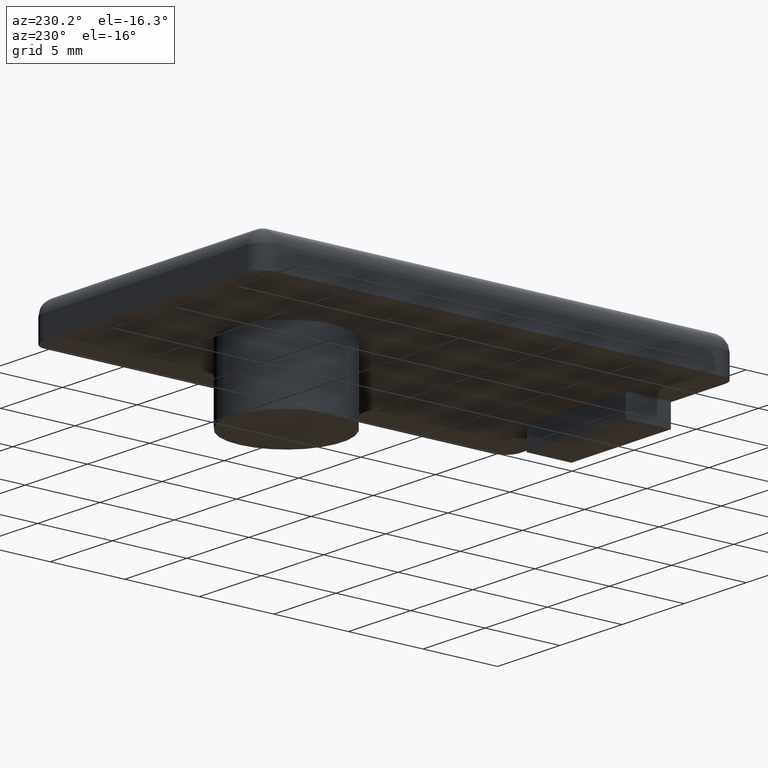
[diagram: clean part render]
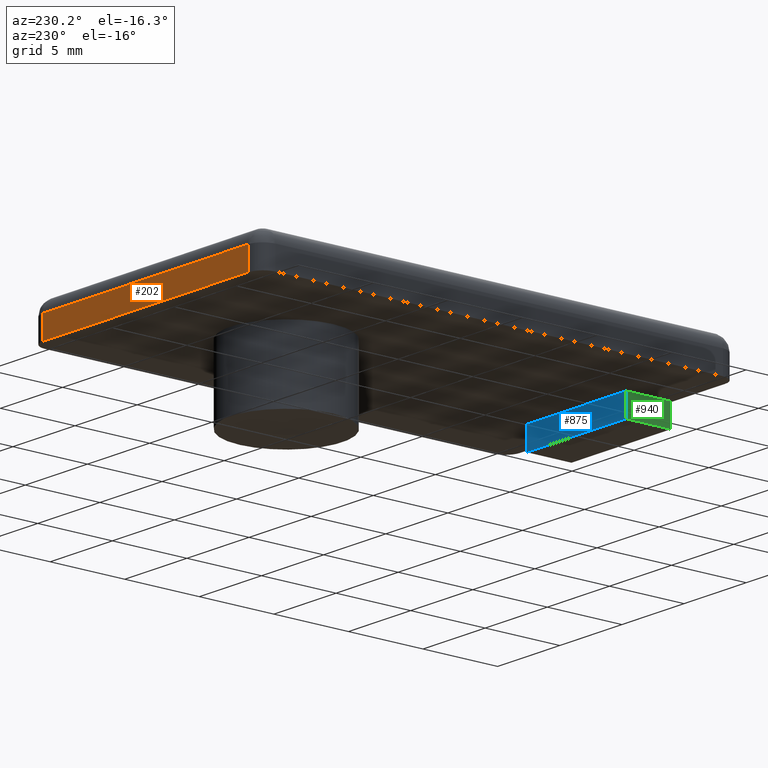
[diagram: same view with three faces highlighted in distinct colors, each labeled with its STEP entity id]
A machine part, auxiliary view with three faces highlighted in distinct colors.
Their STEP definitions:

[orange] entity #202 — the highlighted planar face has unit normal (0, 1, 0).
#34=CARTESIAN_POINT('',(-8.249999999966803,9.449999999962074,0.0));
#35=VERTEX_POINT('',#34);
#43=CARTESIAN_POINT('',(8.249999999967258,9.449999999962074,0.0));
#44=VERTEX_POINT('',#43);
#45=CARTESIAN_POINT('',(8.249999999967258,9.449999999962074,0.0));
#46=DIRECTION('',(-1.0,0.0,0.0));
#47=VECTOR('',#46,16.499999999934062);
#48=LINE('',#45,#47);
#49=EDGE_CURVE('',#44,#35,#48,.T.);
#172=CARTESIAN_POINT('',(8.249999999967258,9.449999999962074,0.0));
#173=DIRECTION('',(0.0,1.0,0.0));
#174=DIRECTION('',(-1.0,0.0,0.0));
#175=AXIS2_PLACEMENT_3D('',#172,#173,#174);
#176=PLANE('',#175);
#177=ORIENTED_EDGE('',*,*,#49,.T.);
#178=CARTESIAN_POINT('',(-8.249999999966803,9.449999999962074,1.499999999989996));
#179=VERTEX_POINT('',#178);
#180=CARTESIAN_POINT('',(-8.249999999966803,9.449999999962074,0.0));
#181=DIRECTION('',(0.0,0.0,1.0));
#182=VECTOR('',#181,1.499999999989996);
#183=LINE('',#180,#182);
#184=EDGE_CURVE('',#35,#179,#183,.T.);
#185=ORIENTED_EDGE('',*,*,#184,.T.);
#186=CARTESIAN_POINT('',(8.249999999967258,9.449999999962074,1.499999999989996));
#187=VERTEX_POINT('',#186);
#188=CARTESIAN_POINT('',(8.249999999967258,9.449999999962074,1.499999999989996));
#189=DIRECTION('',(-1.0,0.0,0.0));
#190=VECTOR('',#189,16.499999999934062);
#191=LINE('',#188,#190);
#192=EDGE_CURVE('',#187,#179,#191,.T.);
#193=ORIENTED_EDGE('',*,*,#192,.F.);
#194=CARTESIAN_POINT('',(8.249999999967258,9.449999999962074,0.0));
#195=DIRECTION('',(0.0,0.0,1.0));
#196=VECTOR('',#195,1.499999999989996);
#197=LINE('',#194,#196);
#198=EDGE_CURVE('',#44,#187,#197,.T.);
#199=ORIENTED_EDGE('',*,*,#198,.F.);
#200=EDGE_LOOP('',(#177,#185,#193,#199));
#201=FACE_OUTER_BOUND('',#200,.T.);
#202=ADVANCED_FACE('',(#201),#176,.T.);

[blue] entity #875 — the highlighted planar face has unit normal (0, 1, 0).
#97=CARTESIAN_POINT('',(-3.999999999984084,-19.449999999922056,0.0));
#98=VERTEX_POINT('',#97);
#99=CARTESIAN_POINT('',(3.999999999984084,-19.449999999922056,0.0));
#100=VERTEX_POINT('',#99);
#101=CARTESIAN_POINT('',(-3.999999999984084,-19.449999999922056,0.0));
#102=DIRECTION('',(1.0,0.0,0.0));
#103=VECTOR('',#102,7.999999999968168);
#104=LINE('',#101,#103);
#105=EDGE_CURVE('',#98,#100,#104,.T.);
#845=CARTESIAN_POINT('',(-3.999999999984084,-19.449999999922056,0.0));
#846=DIRECTION('',(0.0,1.0,0.0));
#847=DIRECTION('',(1.0,0.0,0.0));
#848=AXIS2_PLACEMENT_3D('',#845,#846,#847);
#849=PLANE('',#848);
#850=CARTESIAN_POINT('',(-3.999999999984084,-19.449999999922056,-1.499999999994088));
#851=VERTEX_POINT('',#850);
#852=CARTESIAN_POINT('',(-3.999999999984084,-19.449999999922056,0.0));
#853=DIRECTION('',(0.0,0.0,-1.0));
#854=VECTOR('',#853,1.499999999994088);
#855=LINE('',#852,#854);
#856=EDGE_CURVE('',#98,#851,#855,.T.);
#857=ORIENTED_EDGE('',*,*,#856,.F.);
#858=ORIENTED_EDGE('',*,*,#105,.T.);
#859=CARTESIAN_POINT('',(3.999999999984084,-19.449999999922056,-1.499999999994088));
#860=VERTEX_POINT('',#859);
#861=CARTESIAN_POINT('',(3.999999999984084,-19.449999999922056,0.0));
#862=DIRECTION('',(0.0,0.0,-1.0));
#863=VECTOR('',#862,1.499999999994088);
#864=LINE('',#861,#863);
#865=EDGE_CURVE('',#100,#860,#864,.T.);
#866=ORIENTED_EDGE('',*,*,#865,.T.);
#867=CARTESIAN_POINT('',(-3.999999999984084,-19.449999999922056,-1.499999999994088));
#868=DIRECTION('',(1.0,0.0,0.0));
#869=VECTOR('',#868,7.999999999968168);
#870=LINE('',#867,#869);
#871=EDGE_CURVE('',#851,#860,#870,.T.);
#872=ORIENTED_EDGE('',*,*,#871,.F.);
#873=EDGE_LOOP('',(#857,#858,#866,#872));
#874=FACE_OUTER_BOUND('',#873,.T.);
#875=ADVANCED_FACE('',(#874),#849,.T.);

[green] entity #940 — the highlighted planar face has unit normal (-1, 0, 0).
#97=CARTESIAN_POINT('',(-3.999999999984084,-19.449999999922056,0.0));
#98=VERTEX_POINT('',#97);
#107=CARTESIAN_POINT('',(-3.999999999984084,-22.449999999910233,0.0));
#108=VERTEX_POINT('',#107);
#109=CARTESIAN_POINT('',(-3.999999999984084,-22.449999999910233,0.0));
#110=DIRECTION('',(0.0,1.0,0.0));
#111=VECTOR('',#110,2.999999999988177);
#112=LINE('',#109,#111);
#113=EDGE_CURVE('',#108,#98,#112,.T.);
#850=CARTESIAN_POINT('',(-3.999999999984084,-19.449999999922056,-1.499999999994088));
#851=VERTEX_POINT('',#850);
#852=CARTESIAN_POINT('',(-3.999999999984084,-19.449999999922056,0.0));
#853=DIRECTION('',(0.0,0.0,-1.0));
#854=VECTOR('',#853,1.499999999994088);
#855=LINE('',#852,#854);
#856=EDGE_CURVE('',#98,#851,#855,.T.);
#907=CARTESIAN_POINT('',(-3.999999999984084,-22.449999999910233,-1.499999999994088));
#908=VERTEX_POINT('',#907);
#909=CARTESIAN_POINT('',(-3.999999999984084,-22.449999999910233,0.0));
#910=DIRECTION('',(0.0,0.0,-1.0));
#911=VECTOR('',#910,1.499999999994088);
#912=LINE('',#909,#911);
#913=EDGE_CURVE('',#108,#908,#912,.T.);
#924=CARTESIAN_POINT('',(-3.999999999984084,-22.449999999910233,0.0));
#925=DIRECTION('',(-1.0,0.0,0.0));
#926=DIRECTION('',(0.0,1.0,0.0));
#927=AXIS2_PLACEMENT_3D('',#924,#925,#926);
#928=PLANE('',#927);
#929=CARTESIAN_POINT('',(-3.999999999984084,-22.449999999910233,-1.499999999994088));
#930=DIRECTION('',(0.0,1.0,0.0));
#931=VECTOR('',#930,2.999999999988177);
#932=LINE('',#929,#931);
#933=EDGE_CURVE('',#908,#851,#932,.T.);
#934=ORIENTED_EDGE('',*,*,#933,.F.);
#935=ORIENTED_EDGE('',*,*,#913,.F.);
#936=ORIENTED_EDGE('',*,*,#113,.T.);
#937=ORIENTED_EDGE('',*,*,#856,.T.);
#938=EDGE_LOOP('',(#934,#935,#936,#937));
#939=FACE_OUTER_BOUND('',#938,.T.);
#940=ADVANCED_FACE('',(#939),#928,.T.);